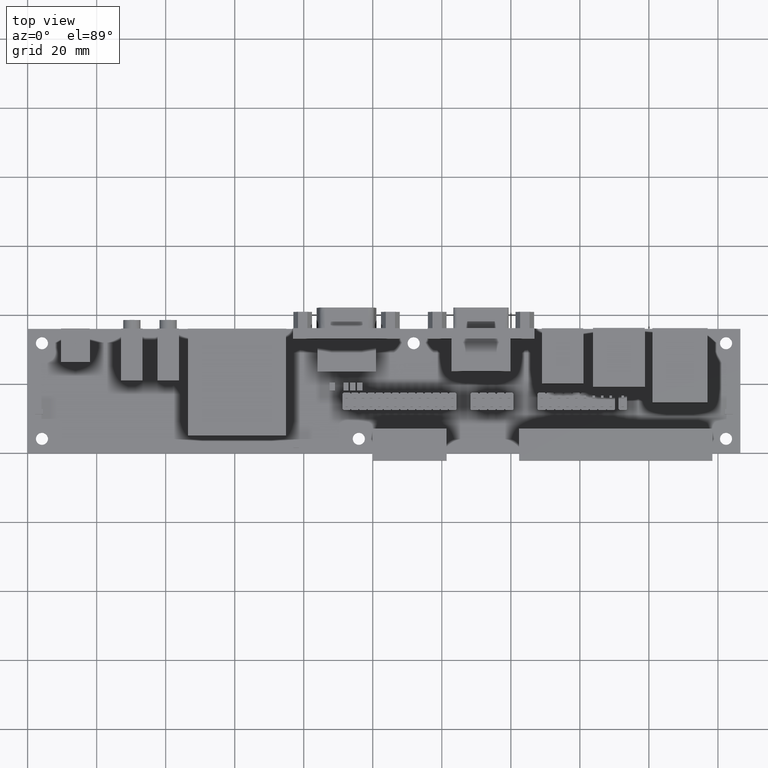
[diagram: clean part render]
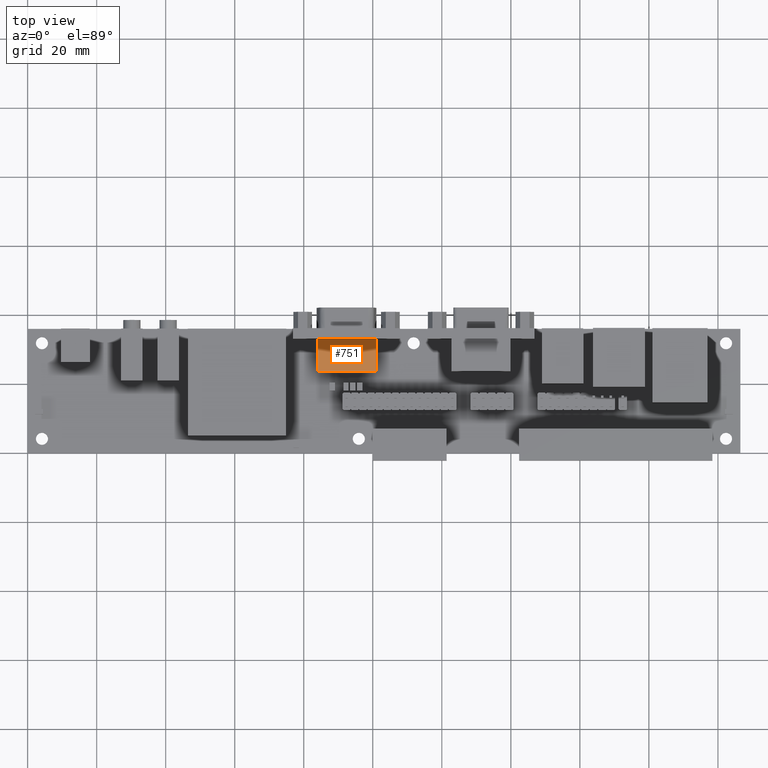
[diagram: same view with one face highlighted and labeled with its STEP entity id]
A machine part, top view. The second image highlights one B-rep face of the part: STEP entity #751.
In plain terms, the highlighted planar face has unit normal (0, 0, -1).
Its self-contained STEP definition (entity closure, byte-faithful):
#751=ADVANCED_FACE($,(#1631),#10477,.T.);
#1631=FACE_OUTER_BOUND($,#2512,.T.);
#2512=EDGE_LOOP($,(#4620,#4621,#4622,#4623));
#4620=ORIENTED_EDGE($,*,*,#7694,.F.);
#4621=ORIENTED_EDGE($,*,*,#7698,.F.);
#4622=ORIENTED_EDGE($,*,*,#7701,.F.);
#4623=ORIENTED_EDGE($,*,*,#7693,.F.);
#7693=EDGE_CURVE($,#9367,#9366,#11729,.T.);
#7694=EDGE_CURVE($,#9368,#9367,#11730,.T.);
#7698=EDGE_CURVE($,#9370,#9368,#11734,.T.);
#7701=EDGE_CURVE($,#9366,#9370,#11737,.T.);
#9366=VERTEX_POINT($,#17492);
#9367=VERTEX_POINT($,#17493);
#9368=VERTEX_POINT($,#17494);
#9370=VERTEX_POINT($,#17496);
#10477=PLANE($,#13221);
#11729=B_SPLINE_CURVE_WITH_KNOTS($,3,(#17462,#17463,#17464,#17465),.UNSPECIFIED.,
.F.,.F.,(4,4),(28.,45.),.UNSPECIFIED.);
#11730=B_SPLINE_CURVE_WITH_KNOTS($,1,(#17466,#17467),.UNSPECIFIED.,.F.,.F.,
(2,2),(0.,9.4),.UNSPECIFIED.);
#11734=B_SPLINE_CURVE_WITH_KNOTS($,1,(#17474,#17475),.UNSPECIFIED.,.F.,.F.,
(2,2),(0.,17.),.UNSPECIFIED.);
#11737=B_SPLINE_CURVE_WITH_KNOTS($,1,(#17480,#17481),.UNSPECIFIED.,.F.,.F.,
(2,2),(3.6,13.),.UNSPECIFIED.);
#13221=AXIS2_PLACEMENT_3D($,#17488,#13949,$);
#13949=DIRECTION($,(0.,0.,-1.));
#17462=CARTESIAN_POINT($,(83.8978497607998,23.6,14.7));
#17463=CARTESIAN_POINT($,(89.5645164274665,23.6,14.7));
#17464=CARTESIAN_POINT($,(95.2311830941331,23.6,14.7));
#17465=CARTESIAN_POINT($,(100.8978497608,23.6,14.7));
#17466=CARTESIAN_POINT($,(83.8978497607998,33.,14.7));
#17467=CARTESIAN_POINT($,(83.8978497607998,23.6,14.7));
#17474=CARTESIAN_POINT($,(100.8978497608,33.,14.7));
#17475=CARTESIAN_POINT($,(83.8978497607998,33.,14.7));
#17480=CARTESIAN_POINT($,(100.8978497608,23.6,14.7));
#17481=CARTESIAN_POINT($,(100.8978497608,33.,14.7));
#17488=CARTESIAN_POINT($,(83.8978497607998,33.,14.7));
#17492=CARTESIAN_POINT($,(100.8978497608,23.6,14.7));
#17493=CARTESIAN_POINT($,(83.8978497607998,23.6,14.7));
#17494=CARTESIAN_POINT($,(83.8978497607998,33.,14.7));
#17496=CARTESIAN_POINT($,(100.8978497608,33.,14.7));